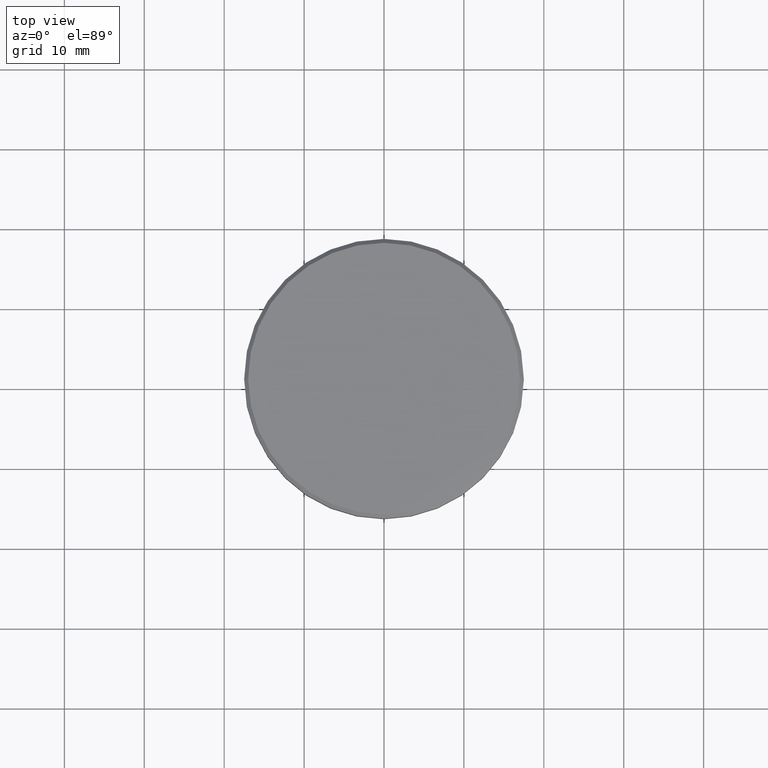
[diagram: clean part render]
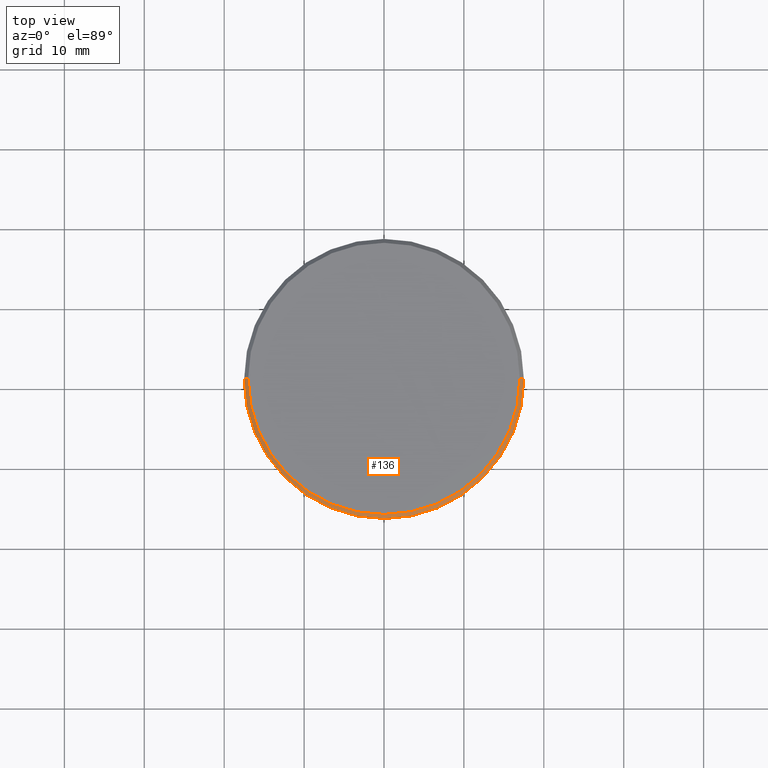
[diagram: same view with one face highlighted and labeled with its STEP entity id]
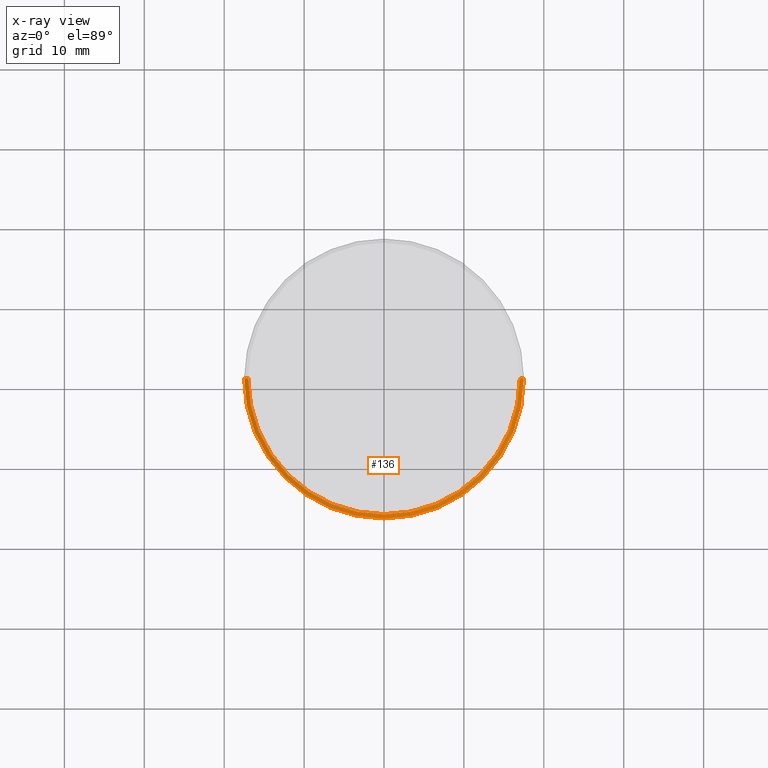
[diagram: x-ray of the same camera — body ghosted, the highlighted face saturated]
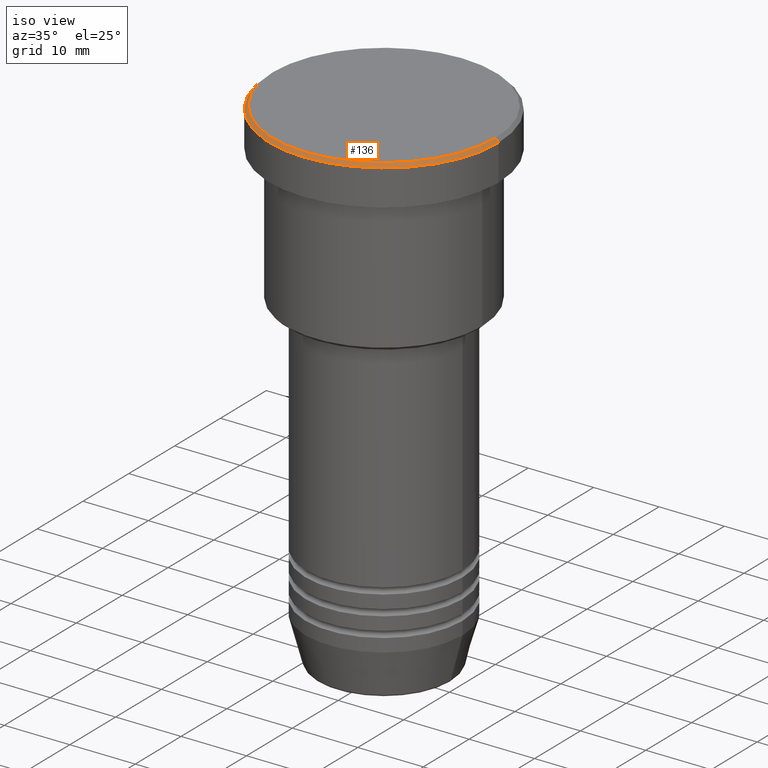
[diagram: same view with one face highlighted and labeled with its STEP entity id]
A machine part, top view. The second image highlights one B-rep face of the part: STEP entity #136.
The next image is the same camera in x-ray: the body ghosted, the highlighted face saturated — about 0% of this face is hidden behind the body in this view.
A second angle (iso view) of the same face is appended — the face is thin or edge-on in the first view.
In plain terms, the highlighted conical surface has half-angle 45 deg.
Its self-contained STEP definition (entity closure, byte-faithful):
#8 = DIRECTION ( 'NONE',  ( 0.000000000000000000, 0.000000000000000000, -1.000000000000000000 ) ) ;
#23 = CARTESIAN_POINT ( 'NONE',  ( 0.000000000000000000, 0.000000000000000000, 0.000000000000000000 ) ) ;
#99 = CARTESIAN_POINT ( 'NONE',  ( -17.00000000000002842, 0.000000000000000000, 0.000000000000000000 ) ) ;
#136 = ADVANCED_FACE ( 'NONE', ( #831 ), #1019, .T. ) ;
#138 = ORIENTED_EDGE ( 'NONE', *, *, #405, .T. ) ;
#174 = ORIENTED_EDGE ( 'NONE', *, *, #680, .F. ) ;
#191 = DIRECTION ( 'NONE',  ( -1.000000000000000000, 0.000000000000000000, 0.000000000000000000 ) ) ;
#236 = ORIENTED_EDGE ( 'NONE', *, *, #1009, .F. ) ;
#254 = AXIS2_PLACEMENT_3D ( 'NONE', #602, #794, #429 ) ;
#292 = AXIS2_PLACEMENT_3D ( 'NONE', #23, #299, #765 ) ;
#293 = ORIENTED_EDGE ( 'NONE', *, *, #606, .F. ) ;
#294 = VECTOR ( 'NONE', #934, 1000.000000000000114 ) ;
#299 = DIRECTION ( 'NONE',  ( -0.000000000000000000, -0.000000000000000000, 1.000000000000000000 ) ) ;
#390 = LINE ( 'NONE', #752, #294 ) ;
#405 = EDGE_CURVE ( 'NONE', #706, #545, #442, .T. ) ;
#429 = DIRECTION ( 'NONE',  ( 1.000000000000000000, 0.000000000000000000, 0.000000000000000000 ) ) ;
#442 = LINE ( 'NONE', #99, #1139 ) ;
#462 = DIRECTION ( 'NONE',  ( -0.7071067811865474617, 0.000000000000000000, -0.7071067811865474617 ) ) ;
#545 = VERTEX_POINT ( 'NONE', #586 ) ;
#586 = CARTESIAN_POINT ( 'NONE',  ( -17.50000000000000000, 2.143131898507868248E-15, -0.4999999999999726885 ) ) ;
#591 = CARTESIAN_POINT ( 'NONE',  ( 17.00000000000002842, 2.112515728529186039E-15, 0.000000000000000000 ) ) ;
#593 = EDGE_LOOP ( 'NONE', ( #293, #236, #138, #174 ) ) ;
#602 = CARTESIAN_POINT ( 'NONE',  ( 0.000000000000000000, 0.000000000000000000, -0.4999999999999726885 ) ) ;
#606 = EDGE_CURVE ( 'NONE', #927, #1140, #390, .T. ) ;
#680 = EDGE_CURVE ( 'NONE', #1140, #545, #836, .T. ) ;
#692 = CARTESIAN_POINT ( 'NONE',  ( -17.00000000000002842, 0.000000000000000000, 0.000000000000000000 ) ) ;
#706 = VERTEX_POINT ( 'NONE', #692 ) ;
#742 = AXIS2_PLACEMENT_3D ( 'NONE', #1093, #8, #191 ) ;
#752 = CARTESIAN_POINT ( 'NONE',  ( 17.00000000000002842, 2.081899558550503830E-15, 0.000000000000000000 ) ) ;
#765 = DIRECTION ( 'NONE',  ( 1.000000000000000000, 0.000000000000000000, 0.000000000000000000 ) ) ;
#794 = DIRECTION ( 'NONE',  ( 0.000000000000000000, 0.000000000000000000, -1.000000000000000000 ) ) ;
#795 = CIRCLE ( 'NONE', #292, 17.00000000000002842 ) ;
#831 = FACE_OUTER_BOUND ( 'NONE', #593, .T. ) ;
#836 = CIRCLE ( 'NONE', #254, 17.50000000000000000 ) ;
#927 = VERTEX_POINT ( 'NONE', #591 ) ;
#934 = DIRECTION ( 'NONE',  ( 0.7071067811865474617, 8.659560562354932858E-17, -0.7071067811865474617 ) ) ;
#1009 = EDGE_CURVE ( 'NONE', #706, #927, #795, .T. ) ;
#1019 = CONICAL_SURFACE ( 'NONE', #742, 17.00000000000002842, 0.7853981633974482790 ) ;
#1093 = CARTESIAN_POINT ( 'NONE',  ( 0.000000000000000000, 0.000000000000000000, 0.000000000000000000 ) ) ;
#1129 = CARTESIAN_POINT ( 'NONE',  ( 17.50000000000000000, 0.000000000000000000, -0.4999999999999726885 ) ) ;
#1139 = VECTOR ( 'NONE', #462, 1000.000000000000114 ) ;
#1140 = VERTEX_POINT ( 'NONE', #1129 ) ;